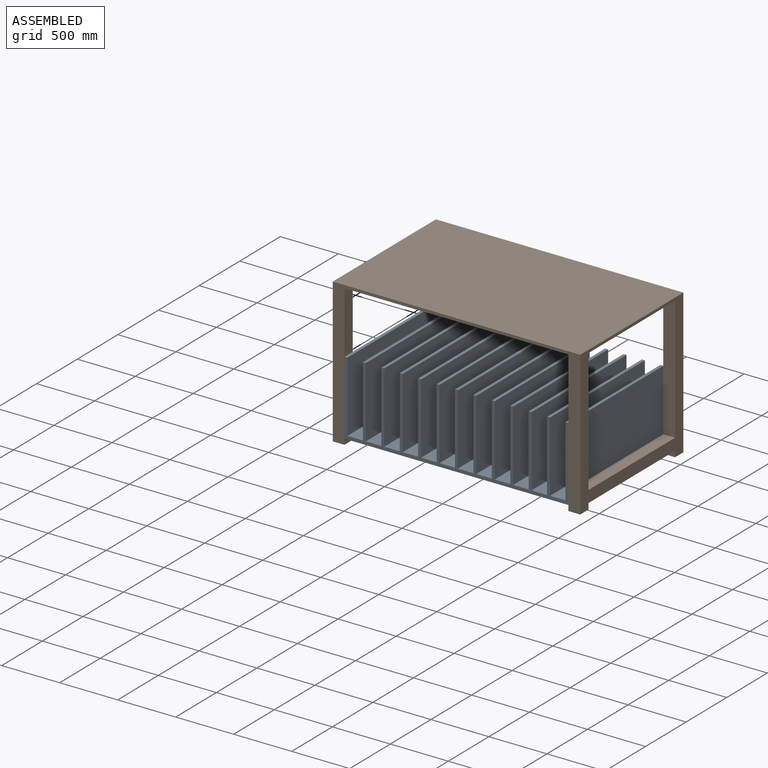
[diagram: assembled view]
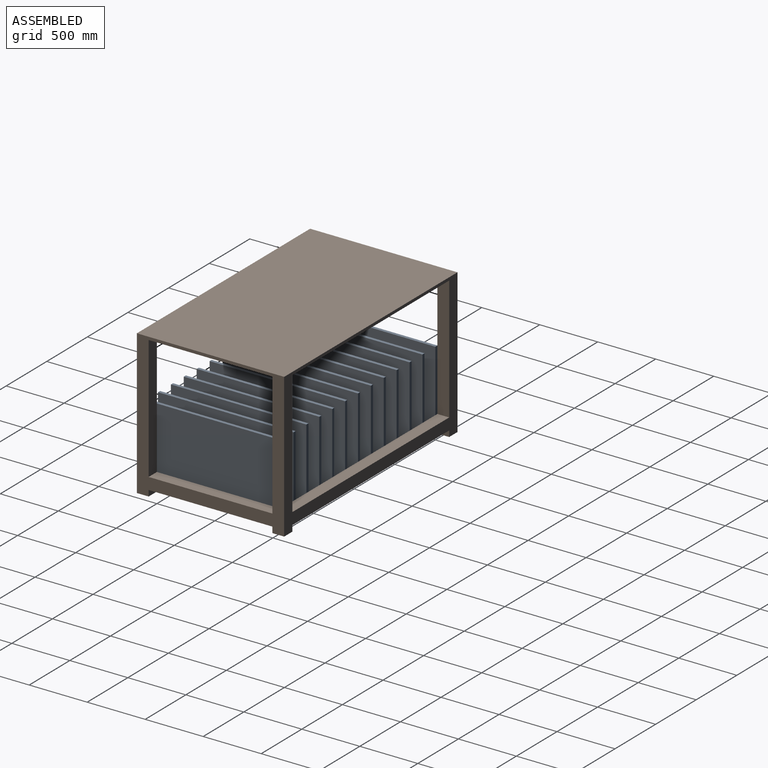
[diagram: assembled view, second angle]
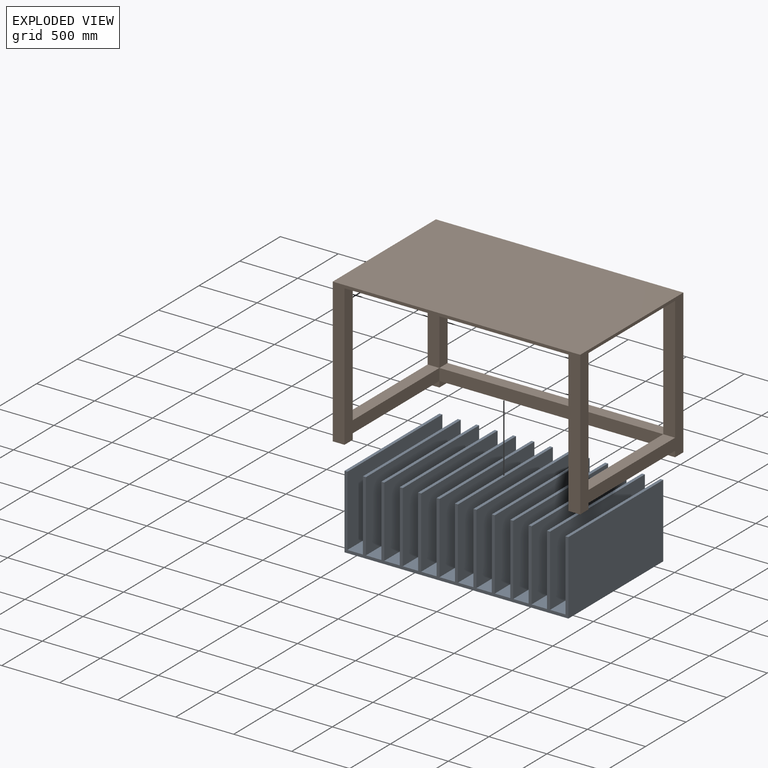
[diagram: exploded view]
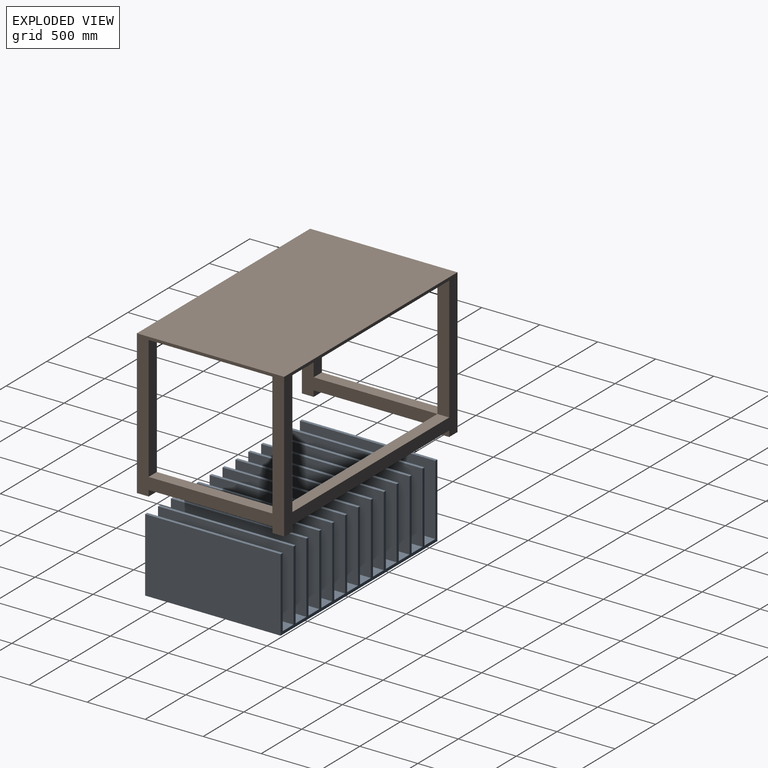
[diagram: exploded view, second angle]
ASSEMBLY  parts=2 mates=3
PART A: 54 faces, bbox 1930.4x1168.4x635 mm
  f0: plane 1168.4x133.35mm, normal (0,0,1), area 155806.1mm2, adj f13,f15,f50,f52
  f1: plane 1168.4x133.35mm, normal (0,0,1), area 155806.1mm2, adj f13,f15,f47,f49
  f2: plane 1168.4x133.35mm, normal (0,0,1), area 155806.1mm2, adj f13,f15,f44,f46
  f3: plane 1168.4x133.35mm, normal (0,0,1), area 155806.1mm2, adj f13,f15,f41,f43
  f4: plane 1168.4x133.35mm, normal (0,0,1), area 155806.1mm2, adj f13,f15,f38,f40
  f5: plane 1168.4x133.35mm, normal (0,0,1), area 155806.1mm2, adj f13,f15,f35,f37
  f6: plane 1168.4x133.35mm, normal (0,0,1), area 155806.1mm2, adj f13,f15,f32,f34
  f7: plane 1168.4x133.35mm, normal (0,0,1), area 155806.1mm2, adj f13,f15,f29,f31
  f8: plane 1168.4x133.35mm, normal (0,0,1), area 155806.1mm2, adj f13,f15,f26,f28
  f9: plane 1168.4x133.35mm, normal (0,0,1), area 155806.1mm2, adj f13,f15,f23,f25
  f10: plane 1168.4x133.35mm, normal (0,0,1), area 155806.1mm2, adj f13,f15,f20,f22
  f11: plane 1168.4x133.35mm, normal (0,0,1), area 155806.1mm2, adj f13,f15,f17,f19
  f12: plane 1168.4x635mm, normal (1,0,0), area 741934mm2, adj f13,f15,f16,f53
  f13: plane 1930.4x635mm, normal (0,1,0), area 250322.1mm2, adj f0,f1,f2,f3,f4,f5,f6,f7
  f14: plane 1168.4x635mm, normal (-1,0,0), area 741934mm2, adj f13,f15,f16,f18
  f15: plane 1930.4x635mm, normal (0,-1,0), area 250322.1mm2, adj f0,f1,f2,f3,f4,f5,f6,f7
  f16: plane 1930.4x1168.4mm, normal (0,0,-1), area 2255479.4mm2, adj f12,f13,f14,f15
  f17: plane 1168.4x609.6mm, normal (1,0,0), area 712256.6mm2, adj f11,f13,f15,f18
  f18: plane 1168.4x25.4mm, normal (0,0,1), area 29677.4mm2, adj f13,f14,f15,f17
  f19: plane 1168.4x609.6mm, normal (-1,0,0), area 712256.6mm2, adj f11,f13,f15,f21
  f20: plane 1168.4x609.6mm, normal (1,0,0), area 712256.6mm2, adj f10,f13,f15,f21
  f21: plane 1168.4x25.4mm, normal (0,0,1), area 29677.4mm2, adj f13,f15,f19,f20
  f22: plane 1168.4x609.6mm, normal (-1,0,0), area 712256.6mm2, adj f10,f13,f15,f24
  f23: plane 1168.4x609.6mm, normal (1,0,0), area 712256.6mm2, adj f9,f13,f15,f24
  f24: plane 1168.4x25.4mm, normal (0,0,1), area 29677.4mm2, adj f13,f15,f22,f23
  f25: plane 1168.4x609.6mm, normal (-1,0,0), area 712256.6mm2, adj f9,f13,f15,f27
  f26: plane 1168.4x609.6mm, normal (1,0,0), area 712256.6mm2, adj f8,f13,f15,f27
  f27: plane 1168.4x25.4mm, normal (0,0,1), area 29677.4mm2, adj f13,f15,f25,f26
  f28: plane 1168.4x609.6mm, normal (-1,0,0), area 712256.6mm2, adj f8,f13,f15,f30
  f29: plane 1168.4x609.6mm, normal (1,0,0), area 712256.6mm2, adj f7,f13,f15,f30
  f30: plane 1168.4x25.4mm, normal (0,0,1), area 29677.4mm2, adj f13,f15,f28,f29
  f31: plane 1168.4x609.6mm, normal (-1,0,0), area 712256.6mm2, adj f7,f13,f15,f33
  f32: plane 1168.4x609.6mm, normal (1,0,0), area 712256.6mm2, adj f6,f13,f15,f33
  f33: plane 1168.4x25.4mm, normal (0,0,1), area 29677.4mm2, adj f13,f15,f31,f32
  f34: plane 1168.4x609.6mm, normal (-1,0,0), area 712256.6mm2, adj f6,f13,f15,f36
  f35: plane 1168.4x609.6mm, normal (1,0,0), area 712256.6mm2, adj f5,f13,f15,f36
  f36: plane 1168.4x25.4mm, normal (0,0,1), area 29677.4mm2, adj f13,f15,f34,f35
  f37: plane 1168.4x609.6mm, normal (-1,0,0), area 712256.6mm2, adj f5,f13,f15,f39
  f38: plane 1168.4x609.6mm, normal (1,0,0), area 712256.6mm2, adj f4,f13,f15,f39
  f39: plane 1168.4x25.4mm, normal (0,0,1), area 29677.4mm2, adj f13,f15,f37,f38
  f40: plane 1168.4x609.6mm, normal (-1,0,0), area 712256.6mm2, adj f4,f13,f15,f42
  f41: plane 1168.4x609.6mm, normal (1,0,0), area 712256.6mm2, adj f3,f13,f15,f42
  f42: plane 1168.4x25.4mm, normal (0,0,1), area 29677.4mm2, adj f13,f15,f40,f41
  f43: plane 1168.4x609.6mm, normal (-1,0,0), area 712256.6mm2, adj f3,f13,f15,f45
  f44: plane 1168.4x609.6mm, normal (1,0,0), area 712256.6mm2, adj f2,f13,f15,f45
  f45: plane 1168.4x25.4mm, normal (0,0,1), area 29677.4mm2, adj f13,f15,f43,f44
  f46: plane 1168.4x609.6mm, normal (-1,0,0), area 712256.6mm2, adj f2,f13,f15,f48
  f47: plane 1168.4x609.6mm, normal (1,0,0), area 712256.6mm2, adj f1,f13,f15,f48
  f48: plane 1168.4x25.4mm, normal (0,0,1), area 29677.4mm2, adj f13,f15,f46,f47
  f49: plane 1168.4x609.6mm, normal (-1,0,0), area 712256.6mm2, adj f1,f13,f15,f51
  f50: plane 1168.4x609.6mm, normal (1,0,0), area 712256.6mm2, adj f0,f13,f15,f51
  f51: plane 1168.4x25.4mm, normal (0,0,1), area 29677.4mm2, adj f13,f15,f49,f50
  f52: plane 1168.4x609.6mm, normal (-1,0,0), area 712256.6mm2, adj f0,f13,f15,f53
  f53: plane 1168.4x25.4mm, normal (0,0,1), area 29677.4mm2, adj f12,f13,f15,f52
PART B: 31 faces, bbox 2133.6x1270x1244.6 mm
  f0: plane 1066.8x101.6mm, normal (1,0,0), area 108386.9mm2, adj f9,f11,f13,f29
  f1: plane 101.6x50.8mm, normal (1,0,0), area 5161.3mm2, adj f6,f11,f12,f30
  f2: plane 1066.8x101.6mm, normal (-1,0,0), area 108386.9mm2, adj f5,f11,f13,f29
  f3: plane 1219.2x1168.4mm, normal (-1,0,0), area 232257.6mm2, adj f4,f13,f15,f18,f20,f26,f27,f28
  f4: plane 1066.8x101.6mm, normal (0,1,0), area 108386.9mm2, adj f3,f13,f17,f26
  f5: plane 1066.8x101.6mm, normal (0,-1,0), area 108386.9mm2, adj f2,f13,f17,f26
  f6: plane 101.6x50.8mm, normal (0,-1,0), area 5161.3mm2, adj f1,f8,f12,f25
  f7: plane 1066.8x101.6mm, normal (0,1,0), area 108386.9mm2, adj f8,f10,f13,f24
  f8: plane 1270x1244.6mm, normal (-1,0,0), area 388386.3mm2, adj f6,f7,f9,f11,f12,f13,f14,f15
  f9: plane 1066.8x101.6mm, normal (0,-1,0), area 108386.9mm2, adj f0,f8,f13,f24
  f10: plane 1219.2x1168.4mm, normal (1,0,0), area 232257.6mm2, adj f7,f13,f14,f15,f16,f24,f25,f28
  f11: plane 2133.6x1244.6mm, normal (0,1,0), area 498063.5mm2, adj f0,f1,f2,f8,f12,f13,f17,f19
  f12: plane 101.6x101.6mm, normal (0,0,-1), area 10322.6mm2, adj f1,f6,f8,f11
  f13: plane 2133.6x1270mm, normal (0,0,-1), area 2668381.8mm2, adj f0,f2,f3,f4,f5,f7,f8,f9
  f14: plane 101.6x50.8mm, normal (0,1,0), area 5161.3mm2, adj f8,f10,f16,f25
  f15: plane 2133.6x1244.6mm, normal (0,-1,0), area 301934.9mm2, adj f3,f8,f10,f13,f16,f17,f20,f23
  f16: plane 101.6x101.6mm, normal (0,0,-1), area 10322.6mm2, adj f8,f10,f14,f15
  f17: plane 1270x1244.6mm, normal (1,0,0), area 388386.3mm2, adj f4,f5,f11,f13,f15,f18,f20,f21
  f18: plane 101.6x50.8mm, normal (0,1,0), area 5161.3mm2, adj f3,f17,f20,f27
  f19: plane 101.6x50.8mm, normal (-1,0,0), area 5161.3mm2, adj f11,f21,f22,f30
  f20: plane 101.6x101.6mm, normal (0,0,-1), area 10322.6mm2, adj f3,f15,f17,f18
  f21: plane 101.6x50.8mm, normal (0,-1,0), area 5161.3mm2, adj f17,f19,f22,f27
  f22: plane 101.6x101.6mm, normal (0,0,-1), area 10322.6mm2, adj f11,f17,f19,f21
  f23: plane 2133.6x1270mm, normal (0,0,1), area 2709672mm2, adj f8,f11,f15,f17
  f24: plane 1066.8x101.6mm, normal (0,0,1), area 108386.9mm2, adj f7,f8,f9,f10
  f25: plane 1066.8x101.6mm, normal (0,0,-1), area 108386.9mm2, adj f6,f8,f10,f14
  f26: plane 1066.8x101.6mm, normal (0,0,1), area 108386.9mm2, adj f3,f4,f5,f17
  f27: plane 1066.8x101.6mm, normal (0,0,-1), area 108386.9mm2, adj f3,f17,f18,f21
  f28: plane 1930.4x101.6mm, normal (0,-1,0), area 196128.6mm2, adj f3,f10,f29,f30
  f29: plane 1930.4x101.6mm, normal (0,0,1), area 196128.6mm2, adj f0,f2,f11,f28
  f30: plane 1930.4x101.6mm, normal (0,0,-1), area 196128.6mm2, adj f1,f11,f19,f28
PLACE A t=(914.48,-50.8,68.66)mm
PLACE B t=(914.48,0,17.86)mm fixed
MATE planar B.f10 <-> A.f14  axis (1,0,0) through (-50.72,0,68.66)mm
MATE parallel A.f13 <-> B.f28  axis (0,1,0) through (927.18,533.4,94.06)mm
MATE planar A.f16 <-> B.f27  axis (0,0,-1) through (914.48,-50.8,68.66)mm
